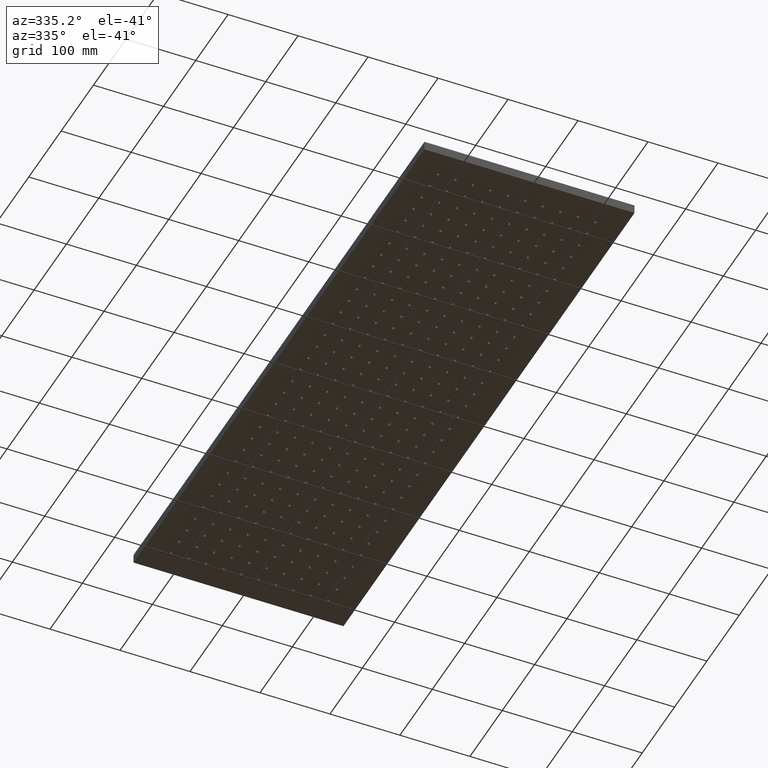
[diagram: clean part render]
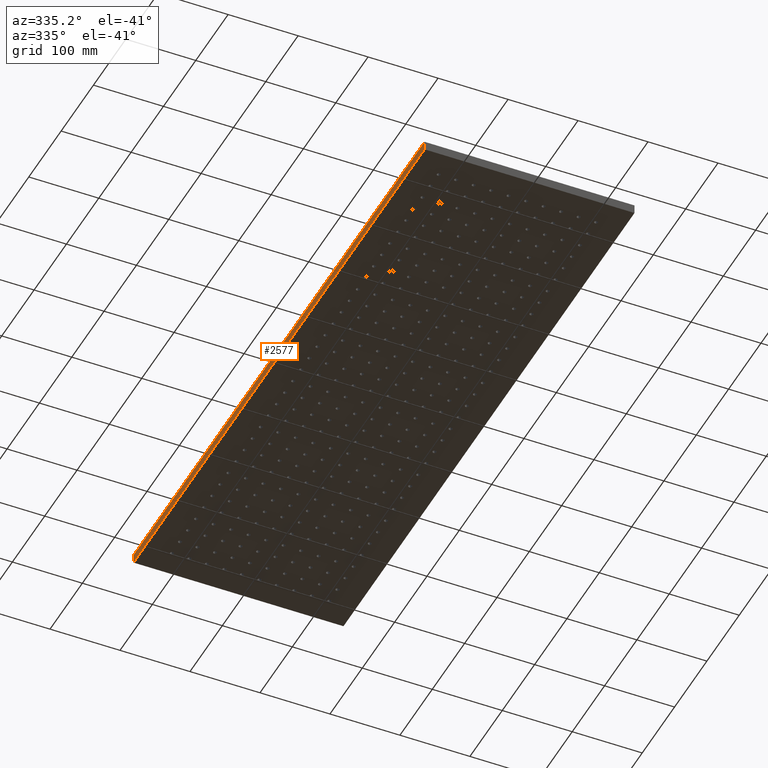
[diagram: same view with one face highlighted and labeled with its STEP entity id]
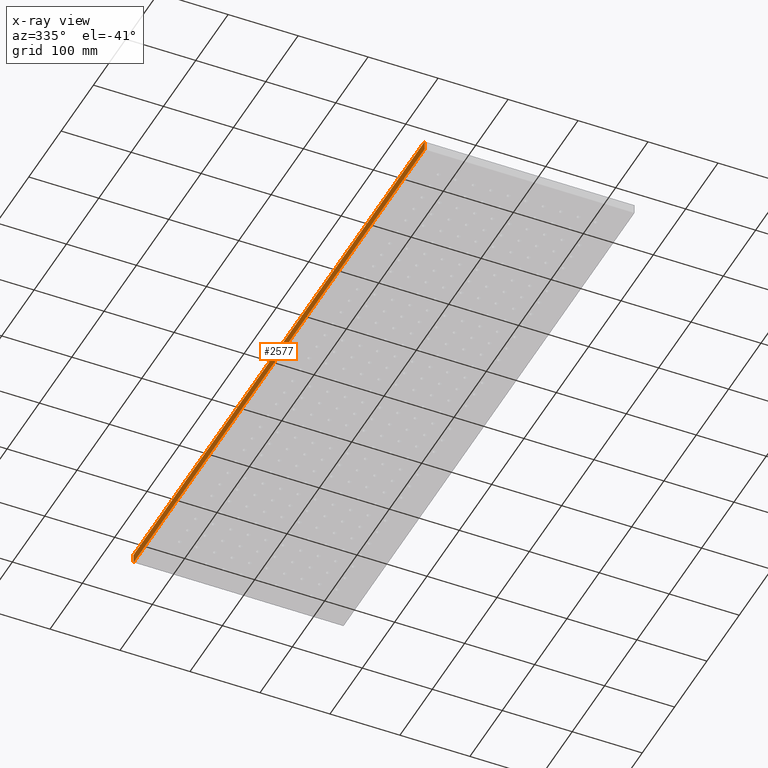
[diagram: x-ray of the same camera — body ghosted, the highlighted face saturated]
A machine part, auxiliary view. The second image highlights one B-rep face of the part: STEP entity #2577.
The next image is the same camera in x-ray: the body ghosted, the highlighted face saturated — about 0% of this face is hidden behind the body in this view.
In plain terms, the highlighted planar face has unit normal (1, 0, -0).
Its self-contained STEP definition (entity closure, byte-faithful):
#403 = DIRECTION ( 'NONE',  ( 1.233581138472396200E-016, -1.000000000000000000, 0.0000000000000000000 ) ) ;
#923 = VERTEX_POINT ( 'NONE', #22068 ) ;
#1199 = VECTOR ( 'NONE', #5074, 1000.000000000000000 ) ;
#1615 = PLANE ( 'NONE',  #25237 ) ;
#1787 = LINE ( 'NONE', #14776, #1199 ) ;
#2577 = ADVANCED_FACE ( 'NONE', ( #12674 ), #1615, .F. ) ;
#5074 = DIRECTION ( 'NONE',  ( -0.0000000000000000000, -0.0000000000000000000, -1.000000000000000000 ) ) ;
#5216 = EDGE_LOOP ( 'NONE', ( #18797, #19659, #8843, #23285 ) ) ;
#5219 = VECTOR ( 'NONE', #403, 1000.000000000000000 ) ;
#5693 = EDGE_CURVE ( 'NONE', #22848, #923, #10385, .T. ) ;
#6331 = DIRECTION ( 'NONE',  ( -0.0000000000000000000, -0.0000000000000000000, -1.000000000000000000 ) ) ;
#7475 = DIRECTION ( 'NONE',  ( -1.233581138472396200E-016, 1.000000000000000000, 0.0000000000000000000 ) ) ;
#8843 = ORIENTED_EDGE ( 'NONE', *, *, #5693, .F. ) ;
#9423 = VERTEX_POINT ( 'NONE', #17186 ) ;
#10385 = LINE ( 'NONE', #12061, #5219 ) ;
#10699 = CARTESIAN_POINT ( 'NONE',  ( -150.0000000000000600, 450.0000000000000000, 13.00000000000000000 ) ) ;
#11359 = DIRECTION ( 'NONE',  ( 1.233581138472396200E-016, -1.000000000000000000, 0.0000000000000000000 ) ) ;
#11755 = EDGE_CURVE ( 'NONE', #923, #9423, #1787, .T. ) ;
#12061 = CARTESIAN_POINT ( 'NONE',  ( -150.0000000000000600, 450.0000000000000000, 13.00000000000000000 ) ) ;
#12674 = FACE_OUTER_BOUND ( 'NONE', #5216, .T. ) ;
#12831 = LINE ( 'NONE', #25058, #17387 ) ;
#14776 = CARTESIAN_POINT ( 'NONE',  ( -149.9999999999999400, -450.0000000000000000, 13.00000000000000000 ) ) ;
#17186 = CARTESIAN_POINT ( 'NONE',  ( -149.9999999999999400, -450.0000000000000000, 0.0000000000000000000 ) ) ;
#17387 = VECTOR ( 'NONE', #11359, 1000.000000000000000 ) ;
#17985 = EDGE_CURVE ( 'NONE', #22848, #21602, #22206, .T. ) ;
#18031 = CARTESIAN_POINT ( 'NONE',  ( -150.0000000000000600, 450.0000000000000000, 13.00000000000000000 ) ) ;
#18797 = ORIENTED_EDGE ( 'NONE', *, *, #21223, .T. ) ;
#19178 = DIRECTION ( 'NONE',  ( 1.000000000000000000, 1.233581138472396200E-016, -0.0000000000000000000 ) ) ;
#19659 = ORIENTED_EDGE ( 'NONE', *, *, #11755, .F. ) ;
#21223 = EDGE_CURVE ( 'NONE', #21602, #9423, #12831, .T. ) ;
#21602 = VERTEX_POINT ( 'NONE', #22470 ) ;
#22068 = CARTESIAN_POINT ( 'NONE',  ( -149.9999999999999400, -450.0000000000000000, 13.00000000000000000 ) ) ;
#22206 = LINE ( 'NONE', #18031, #22828 ) ;
#22470 = CARTESIAN_POINT ( 'NONE',  ( -150.0000000000000600, 450.0000000000000000, 0.0000000000000000000 ) ) ;
#22828 = VECTOR ( 'NONE', #6331, 1000.000000000000000 ) ;
#22848 = VERTEX_POINT ( 'NONE', #10699 ) ;
#23043 = CARTESIAN_POINT ( 'NONE',  ( -150.0000000000000600, 450.0000000000000000, 13.00000000000000000 ) ) ;
#23285 = ORIENTED_EDGE ( 'NONE', *, *, #17985, .T. ) ;
#25058 = CARTESIAN_POINT ( 'NONE',  ( -150.0000000000000600, 450.0000000000000000, 0.0000000000000000000 ) ) ;
#25237 = AXIS2_PLACEMENT_3D ( 'NONE', #23043, #19178, #7475 ) ;